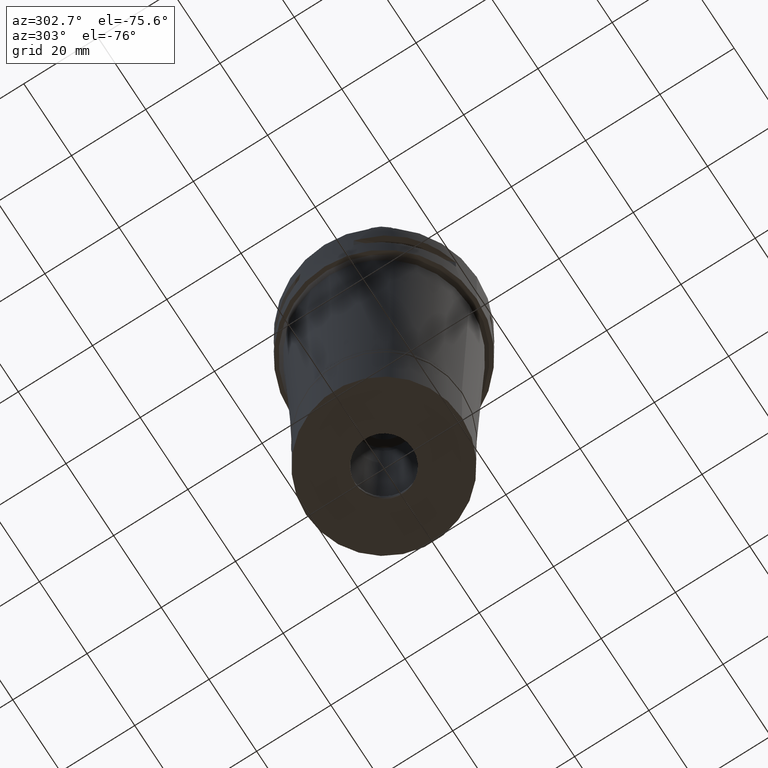
[diagram: clean part render]
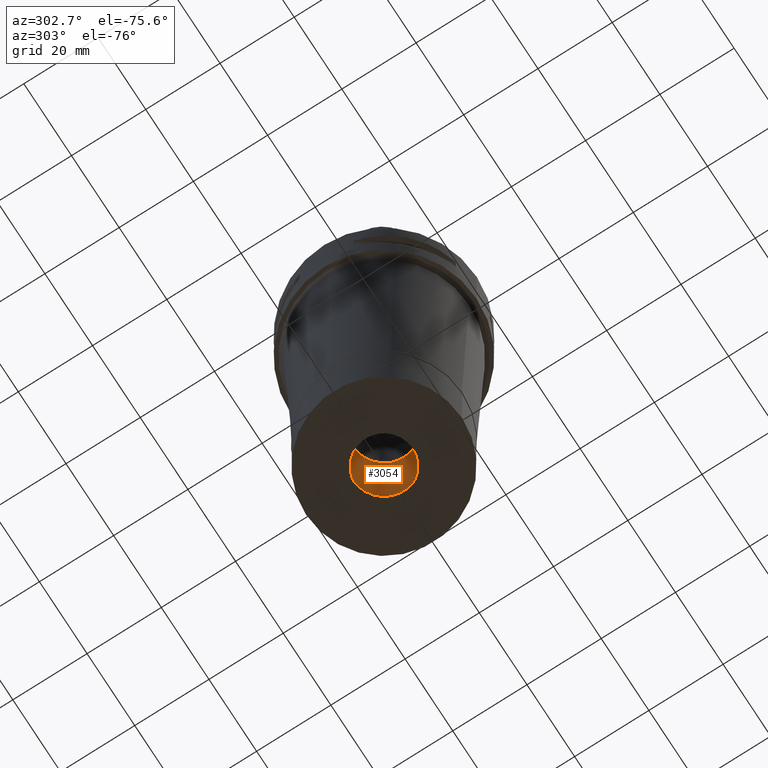
[diagram: same view with one face highlighted and labeled with its STEP entity id]
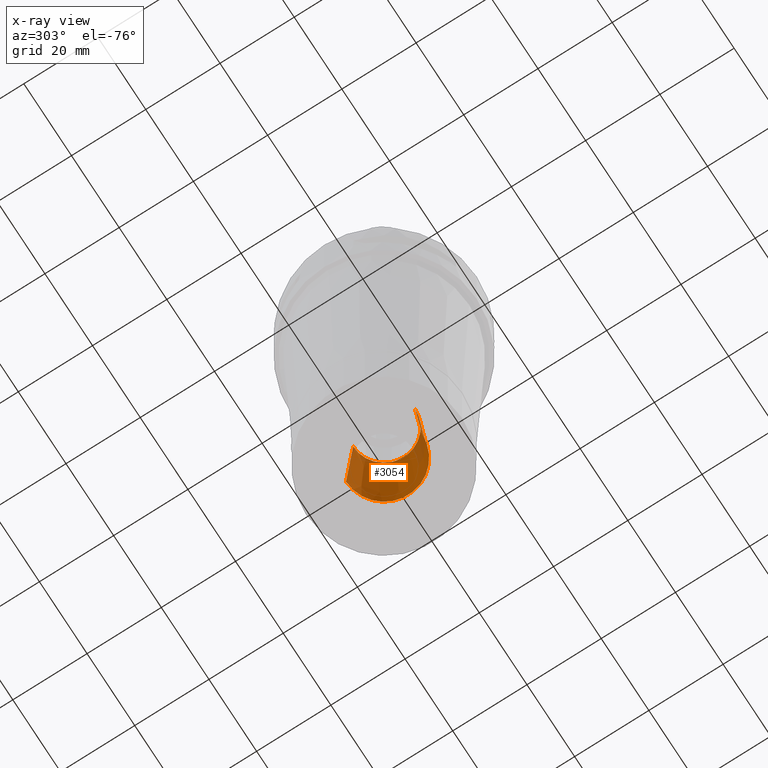
[diagram: x-ray of the same camera — body ghosted, the highlighted face saturated]
A machine part, auxiliary view. The second image highlights one B-rep face of the part: STEP entity #3054.
The next image is the same camera in x-ray: the body ghosted, the highlighted face saturated — about 8% of this face is hidden behind the body in this view.
In plain terms, the highlighted conical surface has half-angle 4 deg.
Its self-contained STEP definition (entity closure, byte-faithful):
#159 = LINE ( 'NONE', #3165, #2135 ) ;
#342 = DIRECTION ( 'NONE',  ( 0.0000000000000000000, 0.0000000000000000000, -1.000000000000000000 ) ) ;
#593 = LINE ( 'NONE', #4383, #1111 ) ;
#628 = VERTEX_POINT ( 'NONE', #1901 ) ;
#638 = ORIENTED_EDGE ( 'NONE', *, *, #3455, .T. ) ;
#757 = CARTESIAN_POINT ( 'NONE',  ( 0.0000000000000000000, 0.0000000000000000000, -84.61370079940999744 ) ) ;
#826 = ORIENTED_EDGE ( 'NONE', *, *, #3709, .T. ) ;
#1025 = DIRECTION ( 'NONE',  ( 0.0000000000000000000, 0.0000000000000000000, -1.000000000000000000 ) ) ;
#1044 = CARTESIAN_POINT ( 'NONE',  ( 0.0000000000000000000, 0.0000000000000000000, -98.55685039969999650 ) ) ;
#1111 = VECTOR ( 'NONE', #3602, 1000.000000000000000 ) ;
#1188 = CIRCLE ( 'NONE', #2438, 8.300000000000000711 ) ;
#1297 = DIRECTION ( 'NONE',  ( 0.0000000000000000000, 0.06975647374412173585, 0.9975640502598245307 ) ) ;
#1358 = CARTESIAN_POINT ( 'NONE',  ( 0.0000000000000000000, 8.300000000000000711, -84.61370079940999744 ) ) ;
#1369 = CARTESIAN_POINT ( 'NONE',  ( 0.0000000000000000000, 0.0000000000000000000, -112.5000000000000000 ) ) ;
#1435 = CONICAL_SURFACE ( 'NONE', #3150, 9.275000000000000355, 0.06981317007975955391 ) ;
#1591 = AXIS2_PLACEMENT_3D ( 'NONE', #1369, #1025, #3241 ) ;
#1708 = EDGE_LOOP ( 'NONE', ( #826, #638, #2839, #3312 ) ) ;
#1741 = DIRECTION ( 'NONE',  ( 0.0000000000000000000, -1.000000000000000000, 0.0000000000000000000 ) ) ;
#1843 = DIRECTION ( 'NONE',  ( 0.0000000000000000000, 1.000000000000000000, 0.0000000000000000000 ) ) ;
#1901 = CARTESIAN_POINT ( 'NONE',  ( 0.0000000000000000000, -10.25000000000000000, -112.5000000000000000 ) ) ;
#2135 = VECTOR ( 'NONE', #1297, 1000.000000000000000 ) ;
#2438 = AXIS2_PLACEMENT_3D ( 'NONE', #757, #342, #1843 ) ;
#2839 = ORIENTED_EDGE ( 'NONE', *, *, #3835, .F. ) ;
#3047 = FACE_OUTER_BOUND ( 'NONE', #1708, .T. ) ;
#3054 = ADVANCED_FACE ( 'NONE', ( #3047 ), #1435, .F. ) ;
#3150 = AXIS2_PLACEMENT_3D ( 'NONE', #1044, #4040, #1741 ) ;
#3165 = CARTESIAN_POINT ( 'NONE',  ( 0.0000000000000000000, -10.25000000000000000, -112.5000000000000000 ) ) ;
#3241 = DIRECTION ( 'NONE',  ( 0.0000000000000000000, 1.000000000000000000, 0.0000000000000000000 ) ) ;
#3246 = EDGE_CURVE ( 'NONE', #4772, #4266, #593, .T. ) ;
#3312 = ORIENTED_EDGE ( 'NONE', *, *, #3246, .F. ) ;
#3438 = CARTESIAN_POINT ( 'NONE',  ( 0.0000000000000000000, 10.25000000000000000, -112.5000000000000000 ) ) ;
#3455 = EDGE_CURVE ( 'NONE', #628, #4370, #159, .T. ) ;
#3602 = DIRECTION ( 'NONE',  ( 0.0000000000000000000, -0.06975647374412173585, 0.9975640502598245307 ) ) ;
#3709 = EDGE_CURVE ( 'NONE', #4772, #628, #4813, .T. ) ;
#3835 = EDGE_CURVE ( 'NONE', #4266, #4370, #1188, .T. ) ;
#4040 = DIRECTION ( 'NONE',  ( 0.0000000000000000000, 0.0000000000000000000, -1.000000000000000000 ) ) ;
#4266 = VERTEX_POINT ( 'NONE', #1358 ) ;
#4370 = VERTEX_POINT ( 'NONE', #4802 ) ;
#4383 = CARTESIAN_POINT ( 'NONE',  ( 0.0000000000000000000, 10.25000000000000000, -112.5000000000000000 ) ) ;
#4772 = VERTEX_POINT ( 'NONE', #3438 ) ;
#4802 = CARTESIAN_POINT ( 'NONE',  ( 0.0000000000000000000, -8.300000000000000711, -84.61370079940999744 ) ) ;
#4813 = CIRCLE ( 'NONE', #1591, 10.25000000000000000 ) ;